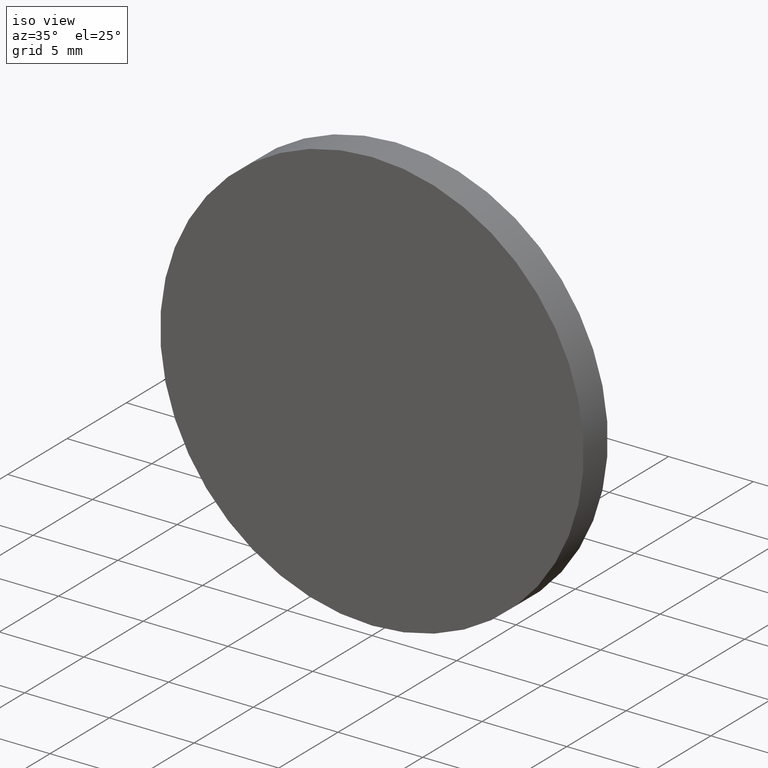
[diagram: clean part render]
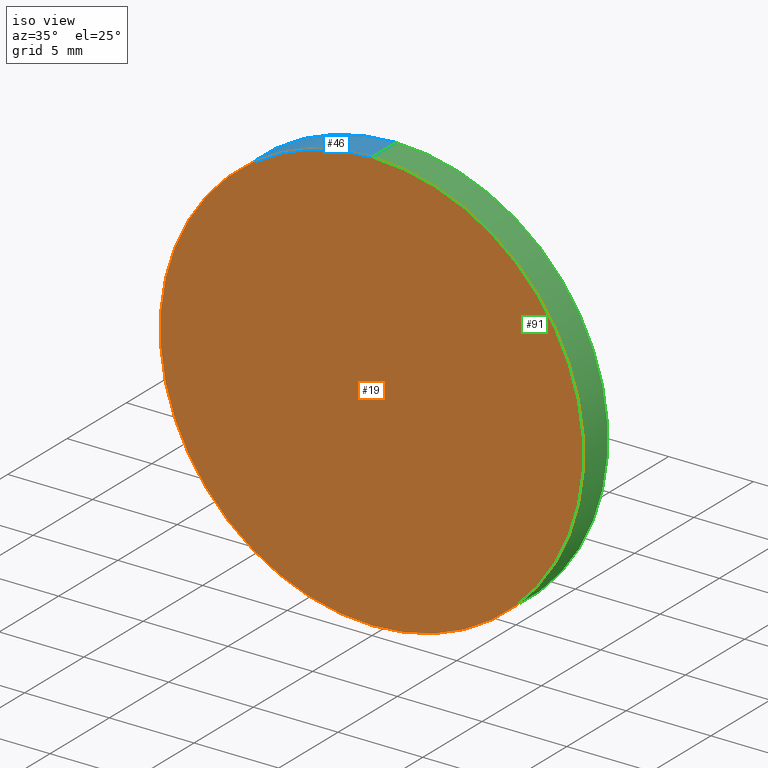
[diagram: same view with three faces highlighted in distinct colors, each labeled with its STEP entity id]
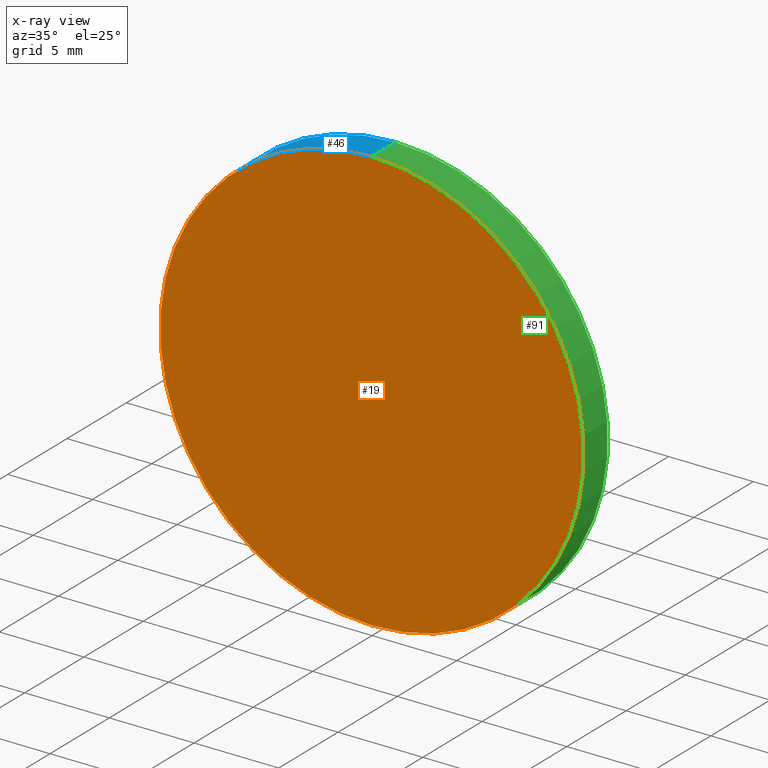
[diagram: x-ray of the same camera — body ghosted, the three highlighted faces saturated]
A machine part, iso view with three faces highlighted in distinct colors.
The next image is the same camera in x-ray (body ghosted, the three faces saturated) — at least one of them is partly hidden behind the body in this view.
Their STEP definitions:

[orange] entity #19 — the highlighted planar face has unit normal (0, 1, 0).
#7 = DIRECTION ( 'NONE',  ( 0.0000000000000000000, 1.000000000000000000, 0.0000000000000000000 ) ) ;
#9 = CARTESIAN_POINT ( 'NONE',  ( 0.0000000000000000000, 0.0000000000000000000, 0.0000000000000000000 ) ) ;
#14 = EDGE_CURVE ( 'NONE', #64, #22, #72, .T. ) ;
#16 = DIRECTION ( 'NONE',  ( 0.0000000000000000000, 0.0000000000000000000, 1.000000000000000000 ) ) ;
#19 = ADVANCED_FACE ( 'NONE', ( #33 ), #78, .F. ) ;
#22 = VERTEX_POINT ( 'NONE', #70 ) ;
#26 = EDGE_CURVE ( 'NONE', #22, #64, #87, .T. ) ;
#32 = AXIS2_PLACEMENT_3D ( 'NONE', #9, #136, #98 ) ;
#33 = FACE_OUTER_BOUND ( 'NONE', #69, .T. ) ;
#38 = CARTESIAN_POINT ( 'NONE',  ( 0.0000000000000000000, 0.0000000000000000000, 0.0000000000000000000 ) ) ;
#43 = ORIENTED_EDGE ( 'NONE', *, *, #26, .F. ) ;
#44 = CARTESIAN_POINT ( 'NONE',  ( 0.0000000000000000000, 0.0000000000000000000, 0.0000000000000000000 ) ) ;
#48 = CARTESIAN_POINT ( 'NONE',  ( 0.0000000000000000000, 0.0000000000000000000, -12.50000000000000000 ) ) ;
#64 = VERTEX_POINT ( 'NONE', #48 ) ;
#69 = EDGE_LOOP ( 'NONE', ( #88, #43 ) ) ;
#70 = CARTESIAN_POINT ( 'NONE',  ( 1.530808498934191500E-015, 0.0000000000000000000, 12.50000000000000000 ) ) ;
#72 = CIRCLE ( 'NONE', #125, 12.50000000000000000 ) ;
#78 = PLANE ( 'NONE',  #93 ) ;
#87 = CIRCLE ( 'NONE', #32, 12.50000000000000000 ) ;
#88 = ORIENTED_EDGE ( 'NONE', *, *, #14, .F. ) ;
#93 = AXIS2_PLACEMENT_3D ( 'NONE', #38, #114, #124 ) ;
#98 = DIRECTION ( 'NONE',  ( 0.0000000000000000000, 0.0000000000000000000, 1.000000000000000000 ) ) ;
#114 = DIRECTION ( 'NONE',  ( 0.0000000000000000000, 1.000000000000000000, 0.0000000000000000000 ) ) ;
#124 = DIRECTION ( 'NONE',  ( 0.0000000000000000000, -0.0000000000000000000, 1.000000000000000000 ) ) ;
#125 = AXIS2_PLACEMENT_3D ( 'NONE', #44, #7, #16 ) ;
#136 = DIRECTION ( 'NONE',  ( 0.0000000000000000000, 1.000000000000000000, 0.0000000000000000000 ) ) ;

[blue] entity #46 — the highlighted cylindrical surface (partial cylindrical patch) has radius 12.5 mm, axis along (-0, -1, -0).
#2 = FACE_OUTER_BOUND ( 'NONE', #113, .T. ) ;
#7 = DIRECTION ( 'NONE',  ( 0.0000000000000000000, 1.000000000000000000, 0.0000000000000000000 ) ) ;
#11 = CARTESIAN_POINT ( 'NONE',  ( 0.0000000000000000000, 2.029999999999999800, -12.50000000000000000 ) ) ;
#13 = CARTESIAN_POINT ( 'NONE',  ( 0.0000000000000000000, 2.029999999999999800, 0.0000000000000000000 ) ) ;
#14 = EDGE_CURVE ( 'NONE', #64, #22, #72, .T. ) ;
#15 = ORIENTED_EDGE ( 'NONE', *, *, #14, .T. ) ;
#16 = DIRECTION ( 'NONE',  ( 0.0000000000000000000, 0.0000000000000000000, 1.000000000000000000 ) ) ;
#18 = ORIENTED_EDGE ( 'NONE', *, *, #57, .F. ) ;
#22 = VERTEX_POINT ( 'NONE', #70 ) ;
#29 = LINE ( 'NONE', #50, #137 ) ;
#30 = AXIS2_PLACEMENT_3D ( 'NONE', #89, #65, #54 ) ;
#35 = AXIS2_PLACEMENT_3D ( 'NONE', #13, #74, #100 ) ;
#44 = CARTESIAN_POINT ( 'NONE',  ( 0.0000000000000000000, 0.0000000000000000000, 0.0000000000000000000 ) ) ;
#46 = ADVANCED_FACE ( 'NONE', ( #2 ), #82, .T. ) ;
#48 = CARTESIAN_POINT ( 'NONE',  ( 0.0000000000000000000, 0.0000000000000000000, -12.50000000000000000 ) ) ;
#49 = CARTESIAN_POINT ( 'NONE',  ( 1.530808498934191500E-015, 2.029999999999999800, 12.50000000000000000 ) ) ;
#50 = CARTESIAN_POINT ( 'NONE',  ( 0.0000000000000000000, 2.029999999999999800, -12.50000000000000000 ) ) ;
#52 = EDGE_CURVE ( 'NONE', #66, #64, #29, .T. ) ;
#54 = DIRECTION ( 'NONE',  ( 0.0000000000000000000, 0.0000000000000000000, 1.000000000000000000 ) ) ;
#55 = LINE ( 'NONE', #62, #103 ) ;
#57 = EDGE_CURVE ( 'NONE', #66, #77, #106, .T. ) ;
#62 = CARTESIAN_POINT ( 'NONE',  ( 1.530808498934191500E-015, 2.029999999999999800, 12.50000000000000000 ) ) ;
#64 = VERTEX_POINT ( 'NONE', #48 ) ;
#65 = DIRECTION ( 'NONE',  ( 0.0000000000000000000, 1.000000000000000000, 0.0000000000000000000 ) ) ;
#66 = VERTEX_POINT ( 'NONE', #11 ) ;
#68 = ORIENTED_EDGE ( 'NONE', *, *, #112, .F. ) ;
#70 = CARTESIAN_POINT ( 'NONE',  ( 1.530808498934191500E-015, 0.0000000000000000000, 12.50000000000000000 ) ) ;
#72 = CIRCLE ( 'NONE', #125, 12.50000000000000000 ) ;
#74 = DIRECTION ( 'NONE',  ( -0.0000000000000000000, -1.000000000000000000, -0.0000000000000000000 ) ) ;
#77 = VERTEX_POINT ( 'NONE', #49 ) ;
#82 = CYLINDRICAL_SURFACE ( 'NONE', #35, 12.50000000000000000 ) ;
#89 = CARTESIAN_POINT ( 'NONE',  ( 0.0000000000000000000, 2.029999999999999800, 0.0000000000000000000 ) ) ;
#100 = DIRECTION ( 'NONE',  ( 0.0000000000000000000, 0.0000000000000000000, -1.000000000000000000 ) ) ;
#103 = VECTOR ( 'NONE', #130, 1000.000000000000000 ) ;
#106 = CIRCLE ( 'NONE', #30, 12.50000000000000000 ) ;
#112 = EDGE_CURVE ( 'NONE', #77, #22, #55, .T. ) ;
#113 = EDGE_LOOP ( 'NONE', ( #68, #18, #126, #15 ) ) ;
#125 = AXIS2_PLACEMENT_3D ( 'NONE', #44, #7, #16 ) ;
#126 = ORIENTED_EDGE ( 'NONE', *, *, #52, .T. ) ;
#130 = DIRECTION ( 'NONE',  ( -0.0000000000000000000, -1.000000000000000000, -0.0000000000000000000 ) ) ;
#137 = VECTOR ( 'NONE', #139, 1000.000000000000000 ) ;
#139 = DIRECTION ( 'NONE',  ( -0.0000000000000000000, -1.000000000000000000, -0.0000000000000000000 ) ) ;

[green] entity #91 — the highlighted cylindrical surface (partial cylindrical patch) has radius 12.5 mm, axis along (-0, -1, -0).
#6 = ORIENTED_EDGE ( 'NONE', *, *, #112, .T. ) ;
#9 = CARTESIAN_POINT ( 'NONE',  ( 0.0000000000000000000, 0.0000000000000000000, 0.0000000000000000000 ) ) ;
#11 = CARTESIAN_POINT ( 'NONE',  ( 0.0000000000000000000, 2.029999999999999800, -12.50000000000000000 ) ) ;
#22 = VERTEX_POINT ( 'NONE', #70 ) ;
#26 = EDGE_CURVE ( 'NONE', #22, #64, #87, .T. ) ;
#29 = LINE ( 'NONE', #50, #137 ) ;
#32 = AXIS2_PLACEMENT_3D ( 'NONE', #9, #136, #98 ) ;
#36 = AXIS2_PLACEMENT_3D ( 'NONE', #63, #102, #111 ) ;
#40 = AXIS2_PLACEMENT_3D ( 'NONE', #122, #84, #71 ) ;
#42 = EDGE_CURVE ( 'NONE', #77, #66, #108, .T. ) ;
#48 = CARTESIAN_POINT ( 'NONE',  ( 0.0000000000000000000, 0.0000000000000000000, -12.50000000000000000 ) ) ;
#49 = CARTESIAN_POINT ( 'NONE',  ( 1.530808498934191500E-015, 2.029999999999999800, 12.50000000000000000 ) ) ;
#50 = CARTESIAN_POINT ( 'NONE',  ( 0.0000000000000000000, 2.029999999999999800, -12.50000000000000000 ) ) ;
#52 = EDGE_CURVE ( 'NONE', #66, #64, #29, .T. ) ;
#55 = LINE ( 'NONE', #62, #103 ) ;
#59 = EDGE_LOOP ( 'NONE', ( #120, #6, #123, #94 ) ) ;
#62 = CARTESIAN_POINT ( 'NONE',  ( 1.530808498934191500E-015, 2.029999999999999800, 12.50000000000000000 ) ) ;
#63 = CARTESIAN_POINT ( 'NONE',  ( 0.0000000000000000000, 2.029999999999999800, 0.0000000000000000000 ) ) ;
#64 = VERTEX_POINT ( 'NONE', #48 ) ;
#66 = VERTEX_POINT ( 'NONE', #11 ) ;
#70 = CARTESIAN_POINT ( 'NONE',  ( 1.530808498934191500E-015, 0.0000000000000000000, 12.50000000000000000 ) ) ;
#71 = DIRECTION ( 'NONE',  ( 0.0000000000000000000, 0.0000000000000000000, -1.000000000000000000 ) ) ;
#77 = VERTEX_POINT ( 'NONE', #49 ) ;
#80 = CYLINDRICAL_SURFACE ( 'NONE', #40, 12.50000000000000000 ) ;
#84 = DIRECTION ( 'NONE',  ( -0.0000000000000000000, -1.000000000000000000, -0.0000000000000000000 ) ) ;
#87 = CIRCLE ( 'NONE', #32, 12.50000000000000000 ) ;
#91 = ADVANCED_FACE ( 'NONE', ( #133 ), #80, .T. ) ;
#94 = ORIENTED_EDGE ( 'NONE', *, *, #52, .F. ) ;
#98 = DIRECTION ( 'NONE',  ( 0.0000000000000000000, 0.0000000000000000000, 1.000000000000000000 ) ) ;
#102 = DIRECTION ( 'NONE',  ( 0.0000000000000000000, 1.000000000000000000, 0.0000000000000000000 ) ) ;
#103 = VECTOR ( 'NONE', #130, 1000.000000000000000 ) ;
#108 = CIRCLE ( 'NONE', #36, 12.50000000000000000 ) ;
#111 = DIRECTION ( 'NONE',  ( 0.0000000000000000000, 0.0000000000000000000, 1.000000000000000000 ) ) ;
#112 = EDGE_CURVE ( 'NONE', #77, #22, #55, .T. ) ;
#120 = ORIENTED_EDGE ( 'NONE', *, *, #42, .F. ) ;
#122 = CARTESIAN_POINT ( 'NONE',  ( 0.0000000000000000000, 2.029999999999999800, 0.0000000000000000000 ) ) ;
#123 = ORIENTED_EDGE ( 'NONE', *, *, #26, .T. ) ;
#130 = DIRECTION ( 'NONE',  ( -0.0000000000000000000, -1.000000000000000000, -0.0000000000000000000 ) ) ;
#133 = FACE_OUTER_BOUND ( 'NONE', #59, .T. ) ;
#136 = DIRECTION ( 'NONE',  ( 0.0000000000000000000, 1.000000000000000000, 0.0000000000000000000 ) ) ;
#137 = VECTOR ( 'NONE', #139, 1000.000000000000000 ) ;
#139 = DIRECTION ( 'NONE',  ( -0.0000000000000000000, -1.000000000000000000, -0.0000000000000000000 ) ) ;